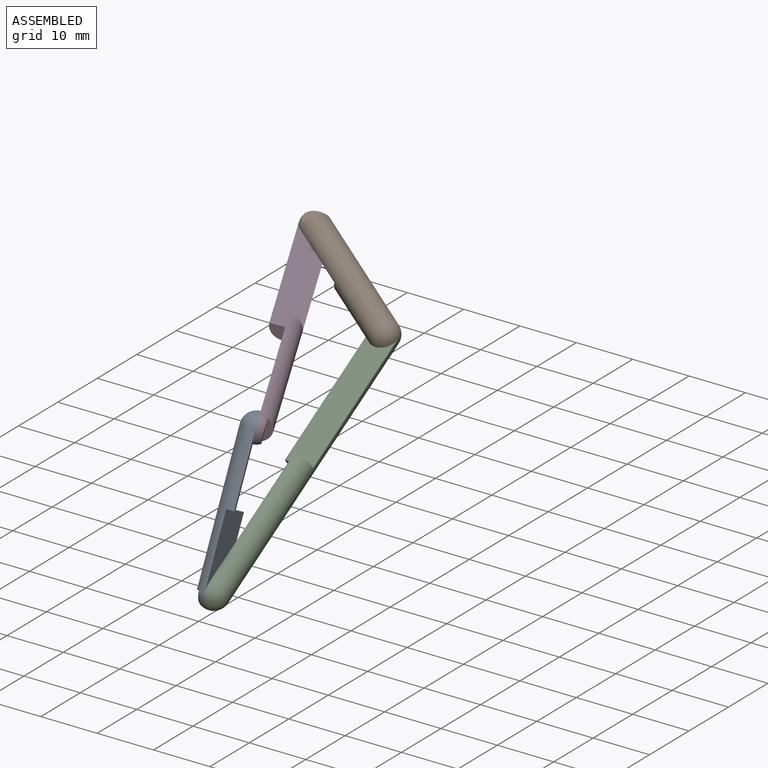
[diagram: assembled view]
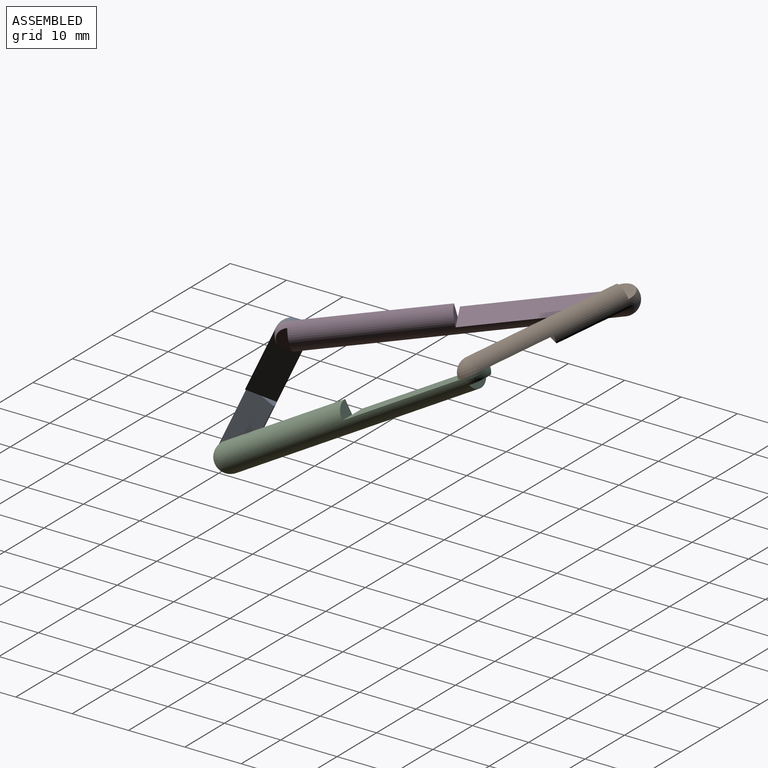
[diagram: assembled view, second angle]
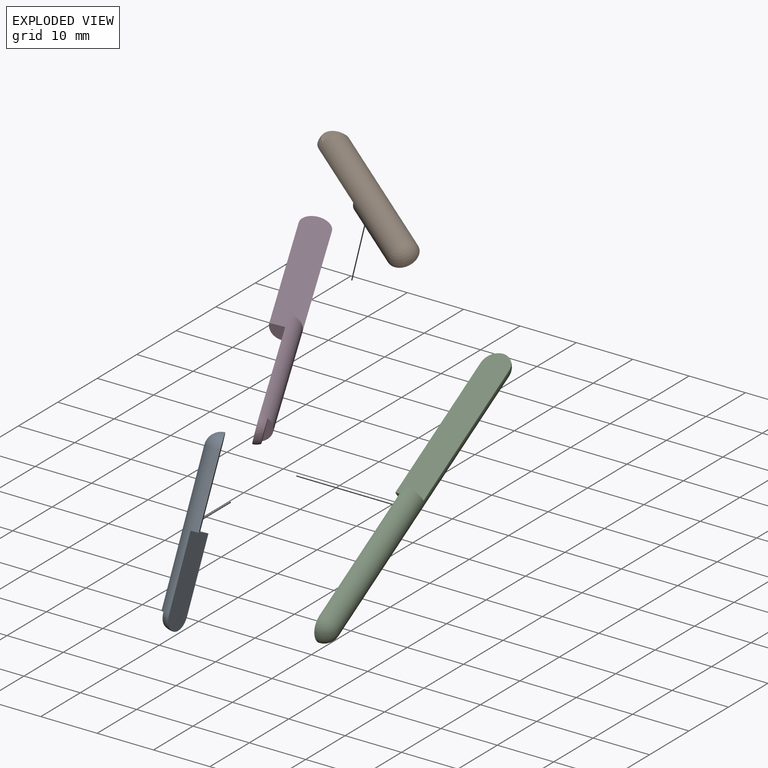
[diagram: exploded view]
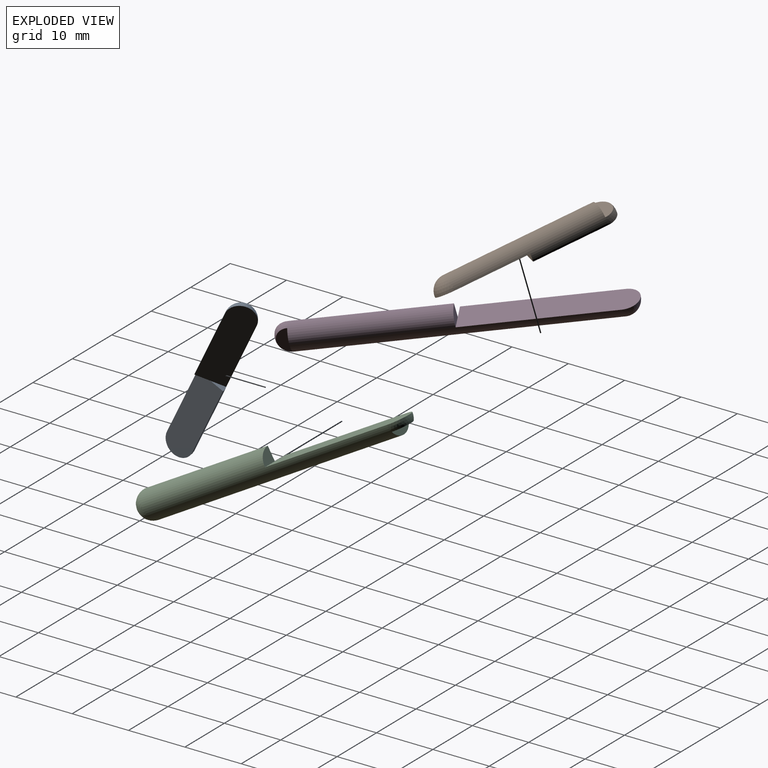
[diagram: exploded view, second angle]
ASSEMBLY  parts=4 mates=4
PART A: 9 faces, bbox 3.8x5x30 mm
  f0: plane 4.33x1.25mm, normal (0,0,-1), area 3.8mm2, adj f1,f7
  f1: cylinder r=2.5mm len=25mm, axis (0,0,-1), area 196.3mm2, adj f0,f2,f3,f4,f5,f6,f8
  f2: plane 2.5x1.25mm, normal (0,0,1), area 1.6mm2, adj f1,f3,f6
  f3: plane 15x4.33mm, normal (0.87,0.5,0), area 72.3mm2, adj f1,f2,f4,f5
  f4: sphere r=2.5mm, area 19.6mm2, adj f1,f3
  f5: plane 2.5x1.25mm, normal (0,0,-1), area 1.6mm2, adj f1,f3,f6
  f6: plane 15x5mm, normal (1,0,0), area 72.3mm2, adj f1,f2,f5,f8
  f7: plane 4.33x2.17mm, normal (-1,0,0), area 7.4mm2, adj f0,f8
  f8: sphere r=2.5mm, area 9.8mm2, adj f1,f6,f7
PART B: same geometry as A
PART C: 9 faces, bbox 5x5x55 mm
  f0: plane 4.33x1.25mm, normal (0,0,-1), area 3.8mm2, adj f2,f7
  f1: plane 2.5x2.5mm, normal (0,0,1), area 4.9mm2, adj f2,f3,f6
  f2: cylinder r=2.5mm len=50mm, axis (0,0,-1), area 392.7mm2, adj f0,f1,f3,f4,f5,f6,f8
  f3: plane 27.5x5mm, normal (0,1,0), area 134.8mm2, adj f1,f2,f4,f5
  f4: sphere r=2.5mm, area 19.6mm2, adj f2,f3
  f5: plane 2.5x2.5mm, normal (0,0,-1), area 4.9mm2, adj f2,f3,f6
  f6: plane 27.5x5mm, normal (1,0,0), area 134.8mm2, adj f1,f2,f5,f8
  f7: plane 4.33x2.17mm, normal (-1,0,0), area 7.4mm2, adj f0,f8
  f8: sphere r=2.5mm, area 9.8mm2, adj f2,f6,f7
PART D: same geometry as C
PLACE A rot(axis=(-1,0,0),25.7deg) t=(0.82,8.07,-5.98)mm
PLACE B rot(axis=(0.22,0.95,-0.22),110.2deg) t=(-9.54,51.92,11.41)mm
PLACE C rot(axis=(0.65,-0.65,0.38),138.7deg) t=(0.82,24.25,-4.67)mm fixed
PLACE D rot(axis=(0.07,-0.65,-0.75),151.1deg) t=(-9.54,35.74,10.1)mm
MATE revolute D.f6 <-> A.f3  axis (-0.87,-0.45,0.22) through (0.82,13.5,5.28)mm
MATE revolute C.f3 <-> A.f6  axis (-1,0,0) through (0.82,2.64,-17.24)mm
MATE revolute B.f3 <-> C.f6  axis (0,0.5,-0.86) through (0.82,45.87,7.89)mm
MATE revolute D.f3 <-> B.f6  axis (0.28,-0.08,0.96) through (-19.89,57.97,14.93)mm
